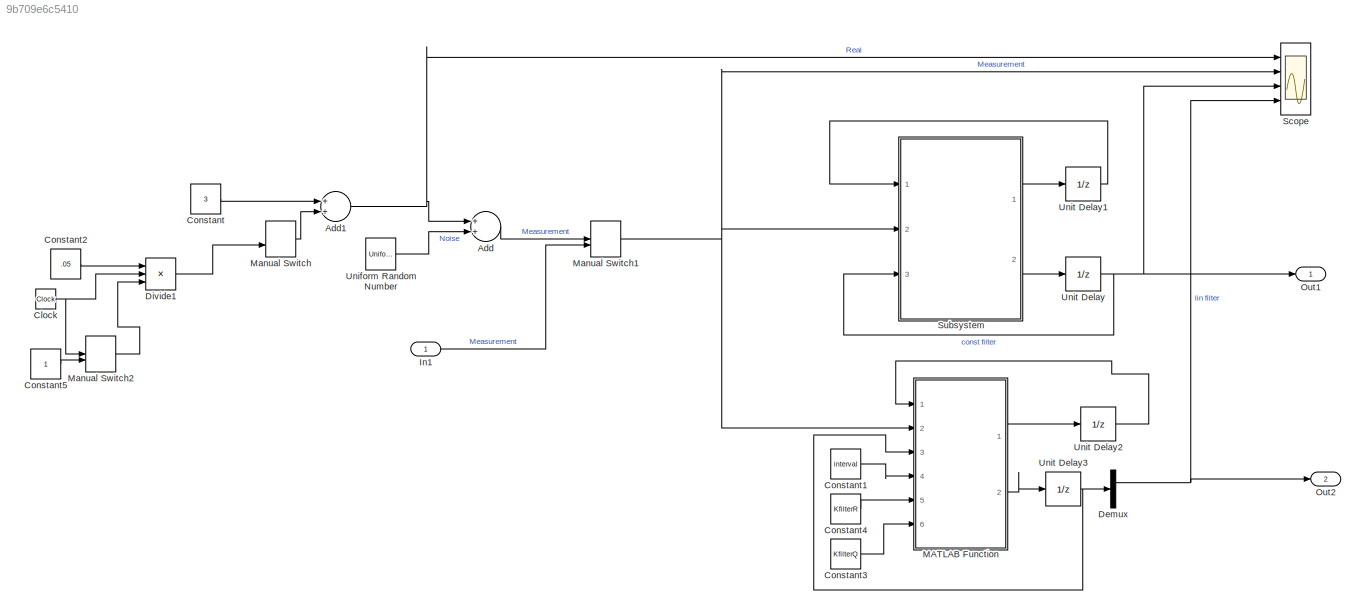
MODEL slx_9b709e6c5410
KIND model
CONFIG AbsTol = auto
CONFIG EnableMultiTasking = off
CONFIG FixedStep = interval
CONFIG MaxStep = auto
CONFIG MinStep = auto
CONFIG RelTol = 1e-3
CONFIG SampleTimeConstraint = Unconstrained
CONFIG Solver = FixedStepAuto
CONFIG SolverName = FixedStepAuto
CONFIG StartTime = 0.0
CONFIG StopTime = 50
BLOCK [Sum] Add
  InputSameDT = off
  OutDataTypeStr = Inherit: Inherit via internal rule
  Ports = [2, 1]
  SaturateOnIntegerOverflow = off
BLOCK [Sum] Add1
  InputSameDT = off
  OutDataTypeStr = Inherit: Inherit via internal rule
  Ports = [2, 1]
  SaturateOnIntegerOverflow = off
BLOCK [Clock] Clock
BLOCK [Constant] Constant
  Value = 3
BLOCK [Constant] Constant1
  Value = interval
BLOCK [Constant] Constant2
  Value = .05
BLOCK [Constant] Constant3
  Value = KfilterQ
BLOCK [Constant] Constant4
  Value = KfilterR
BLOCK [Constant] Constant5
BLOCK [Demux] Demux
  DisplayOption = bar
  Outputs = 2
  Ports = [1, 2]
BLOCK [Product] Divide1
  InputSameDT = off
  Inputs = ***
  OutDataTypeStr = Inherit: Inherit via internal rule
  Ports = [3, 1]
  RndMeth = Floor
  SaturateOnIntegerOverflow = off
BLOCK [Inport] In1
  IconDisplay = Signal name
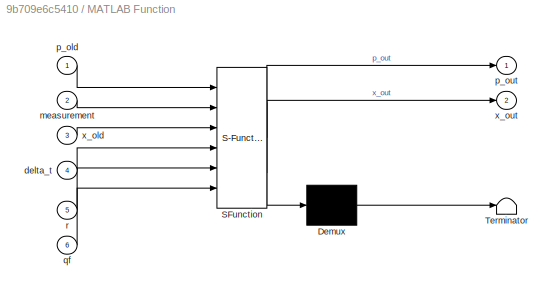
BLOCK [SubSystem] MATLAB Function
  ErrorFcn = Stateflow.Translate.translate
  PermitHierarchicalResolution = ExplicitOnly
  Ports = [6, 2]
  RequestExecContextInheritance = off
  SFBlockType = MATLAB Function
  TreatAsAtomicUnit = on
  Variant = off
BLOCK [Demux] MATLAB Function/ Demux 
  Outputs = 1
  Ports = [1, 1]
BLOCK [S-Function] MATLAB Function/ SFunction 
  EnableBusSupport = on
  FunctionName = sf_sfun
  PortCounts = [6 3]
  Ports = [6, 3]
  SFcnIsStateOwnerBlock = off
  SFunctionDeploymentMode = off
  Tag = Stateflow S-Function Kfilter 2
BLOCK [Terminator] MATLAB Function/ Terminator 
BLOCK [Inport] MATLAB Function/delta_t
  IconDisplay = Port number
  Port = 4
BLOCK [Inport] MATLAB Function/measurement
  IconDisplay = Port number
  Port = 2
BLOCK [Inport] MATLAB Function/p_old
  IconDisplay = Port number
BLOCK [Outport] MATLAB Function/p_out
  IconDisplay = Port number
BLOCK [Inport] MATLAB Function/qf
  IconDisplay = Port number
  Port = 6
BLOCK [Inport] MATLAB Function/r
  IconDisplay = Port number
  Port = 5
BLOCK [Inport] MATLAB Function/x_old
  IconDisplay = Port number
  Port = 3
BLOCK [Outport] MATLAB Function/x_out
  IconDisplay = Port number
  Port = 2
BLOCK [ManualSwitch] Manual Switch
  CurrentSetting = 0
BLOCK [ManualSwitch] Manual Switch1
  CurrentSetting = 0
BLOCK [ManualSwitch] Manual Switch2
  CurrentSetting = 0
BLOCK [Outport] Out1
  IconDisplay = Signal name
BLOCK [Outport] Out2
  IconDisplay = Signal name
  Port = 2
BLOCK [Scope] Scope
  NumInputPorts = 4
  Ports = [4]
  ScopeSpecificationString = Simulink.scopes.TimeScopeBlockCfg('CurrentConfiguration', extmgr.ConfigurationSet(extmgr.Configuration('Core','General UI',true),extmgr.Configuration('Core','Source UI',true),extmgr.Configuration('Sources','WiredSimulink',true),extmgr.Configuration('Visuals','Time Domain',true,'SerializedDisplays',{struct('MinYLimReal','-0.742','MaxYLimReal','6.67804','YLabelReal','','MinYLimMag','0.00000','MaxYLi...<+1409ch>
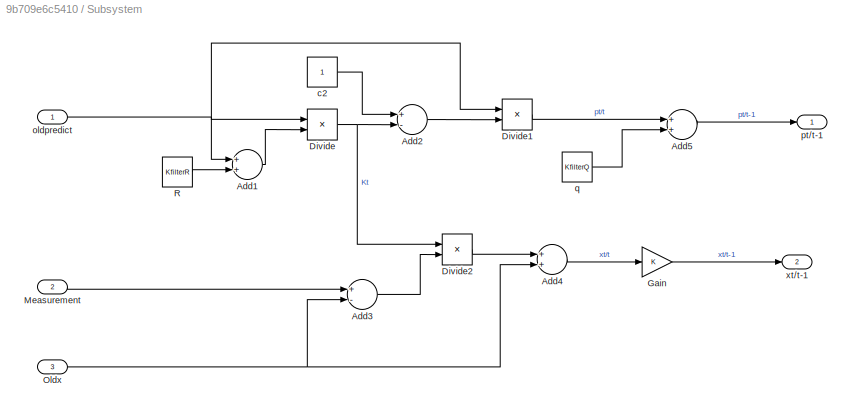
BLOCK [SubSystem] Subsystem
  Ports = [3, 2]
  RequestExecContextInheritance = off
  Variant = off
BLOCK [Sum] Subsystem/Add1
  InputSameDT = off
  OutDataTypeStr = Inherit: Inherit via internal rule
  Ports = [2, 1]
  SaturateOnIntegerOverflow = off
BLOCK [Sum] Subsystem/Add2
  InputSameDT = off
  Inputs = +-
  OutDataTypeStr = Inherit: Inherit via internal rule
  Ports = [2, 1]
  SaturateOnIntegerOverflow = off
BLOCK [Sum] Subsystem/Add3
  InputSameDT = off
  Inputs = +-
  OutDataTypeStr = Inherit: Inherit via internal rule
  Ports = [2, 1]
  SaturateOnIntegerOverflow = off
BLOCK [Sum] Subsystem/Add4
  InputSameDT = off
  OutDataTypeStr = Inherit: Inherit via internal rule
  Ports = [2, 1]
  SaturateOnIntegerOverflow = off
BLOCK [Sum] Subsystem/Add5
  InputSameDT = off
  OutDataTypeStr = Inherit: Inherit via internal rule
  Ports = [2, 1]
  SaturateOnIntegerOverflow = off
BLOCK [Product] Subsystem/Divide
  InputSameDT = off
  Inputs = */
  OutDataTypeStr = Inherit: Inherit via internal rule
  Ports = [2, 1]
  RndMeth = Floor
  SaturateOnIntegerOverflow = off
BLOCK [Product] Subsystem/Divide1
  InputSameDT = off
  Inputs = **
  OutDataTypeStr = Inherit: Inherit via internal rule
  Ports = [2, 1]
  RndMeth = Floor
  SaturateOnIntegerOverflow = off
BLOCK [Product] Subsystem/Divide2
  InputSameDT = off
  Inputs = **
  OutDataTypeStr = Inherit: Inherit via internal rule
  Ports = [2, 1]
  RndMeth = Floor
  SaturateOnIntegerOverflow = off
BLOCK [Gain] Subsystem/Gain
  OutDataTypeStr = Inherit: Inherit via internal rule
  ParamDataTypeStr = Inherit: Inherit via internal rule
  SaturateOnIntegerOverflow = off
BLOCK [Inport] Subsystem/Measurement
  IconDisplay = Port number
  Port = 2
BLOCK [Inport] Subsystem/Oldx
  IconDisplay = Port number
  Port = 3
BLOCK [Constant] Subsystem/R
  Value = KfilterR
BLOCK [Constant] Subsystem/c2
BLOCK [Inport] Subsystem/oldpredict
  IconDisplay = Port number
BLOCK [Outport] Subsystem/pt//t-1
  IconDisplay = Port number
BLOCK [Constant] Subsystem/q
  Value = KfilterQ
BLOCK [Outport] Subsystem/xt//t-1
  IconDisplay = Port number
  Port = 2
BLOCK [UniformRandomNumber] Uniform Random Number
  Maximum = .5
  Minimum = -.5
  SampleTime = 0.05
  Seed = 5
BLOCK [UnitDelay] Unit Delay
  InputProcessing = Elements as channels (sample based)
  SampleTime = -1
BLOCK [UnitDelay] Unit Delay1
  InitialCondition = 1000
  InputProcessing = Elements as channels (sample based)
  SampleTime = -1
BLOCK [UnitDelay] Unit Delay2
  InitialCondition = [1000,0;0,1000]
  InputProcessing = Elements as channels (sample based)
  SampleTime = -1
BLOCK [UnitDelay] Unit Delay3
  InitialCondition = [0;0]
  InputProcessing = Elements as channels (sample based)
  SampleTime = -1
NET Add1:1 -> Add:1, Scope:1
LINE Add:1 -> Manual Switch1:1
NET Clock:1 -> Divide1:2, Manual Switch2:1
LINE Constant1:1 -> MATLAB Function:4
LINE Constant2:1 -> Divide1:1
LINE Constant3:1 -> MATLAB Function:6
LINE Constant4:1 -> MATLAB Function:5
LINE Constant5:1 -> Manual Switch2:2
LINE Constant:1 -> Add1:1
NET Demux:1 -> Out2:1, Scope:4
LINE Divide1:1 -> Manual Switch:2
LINE In1:1 -> Manual Switch1:2
LINE MATLAB Function:1 -> Unit Delay2:1
LINE MATLAB Function:2 -> Unit Delay3:1
NET Manual Switch1:1 -> MATLAB Function:2, Scope:2, Subsystem:2
LINE Manual Switch2:1 -> Divide1:3
LINE Manual Switch:1 -> Add1:2
LINE Subsystem/Add1:1 -> Subsystem/Divide:2
LINE Subsystem/Add2:1 -> Subsystem/Divide1:2
LINE Subsystem/Add3:1 -> Subsystem/Divide2:2
LINE Subsystem/Add4:1 -> Subsystem/Gain:1
LINE Subsystem/Add5:1 -> Subsystem/pt//t-1:1
LINE Subsystem/Divide1:1 -> Subsystem/Add5:1
LINE Subsystem/Divide2:1 -> Subsystem/Add4:1
NET Subsystem/Divide:1 -> Subsystem/Add2:2, Subsystem/Divide2:1
LINE Subsystem/Gain:1 -> Subsystem/xt//t-1:1
LINE Subsystem/Measurement:1 -> Subsystem/Add3:1
NET Subsystem/Oldx:1 -> Subsystem/Add3:2, Subsystem/Add4:2
LINE Subsystem/R:1 -> Subsystem/Add1:2
LINE Subsystem/c2:1 -> Subsystem/Add2:1
NET Subsystem/oldpredict:1 -> Subsystem/Add1:1, Subsystem/Divide1:1, Subsystem/Divide:1
LINE Subsystem/q:1 -> Subsystem/Add5:2
LINE Subsystem:1 -> Unit Delay1:1
LINE Subsystem:2 -> Unit Delay:1
LINE Uniform Random Number:1 -> Add:2
LINE Unit Delay1:1 -> Subsystem:1
LINE Unit Delay2:1 -> MATLAB Function:1
NET Unit Delay3:1 -> Demux:1, MATLAB Function:3
NET Unit Delay:1 -> Out1:1, Scope:3, Subsystem:3
note: NET lines group one-source signal fan-out (src -> all destinations, sorted); 1:1 wires keep LINE
CHART MATLAB Function states=1 transitions=1
  STATE_LABEL 'eML_blk_kernel()'
  STATE_LABEL 'SCRIPT:\nfunction [p_out,x_out] = fcn(p_old,measurement,x_old, delta_t,r, qf)\n\nQ = [delta_t^3*qf/3, delta_t^2*qf/2; delta_t^2*qf/2, delta_t*qf];\nF = [1, delta_t;0,1];\nH = [1,0];\n\nKt=p_old*transpose(H)*inv(H*p_old*transpose(H)+r);\nxcurrent=x_old+Kt*(measurement-H*x_old);\npcurrent=(eye(2)-Kt*H)*p_old;\n\np_out = F*pcurrent*transpose(F)+Q;\nx_out = F*xcurrent;\n\nend\n\n'
